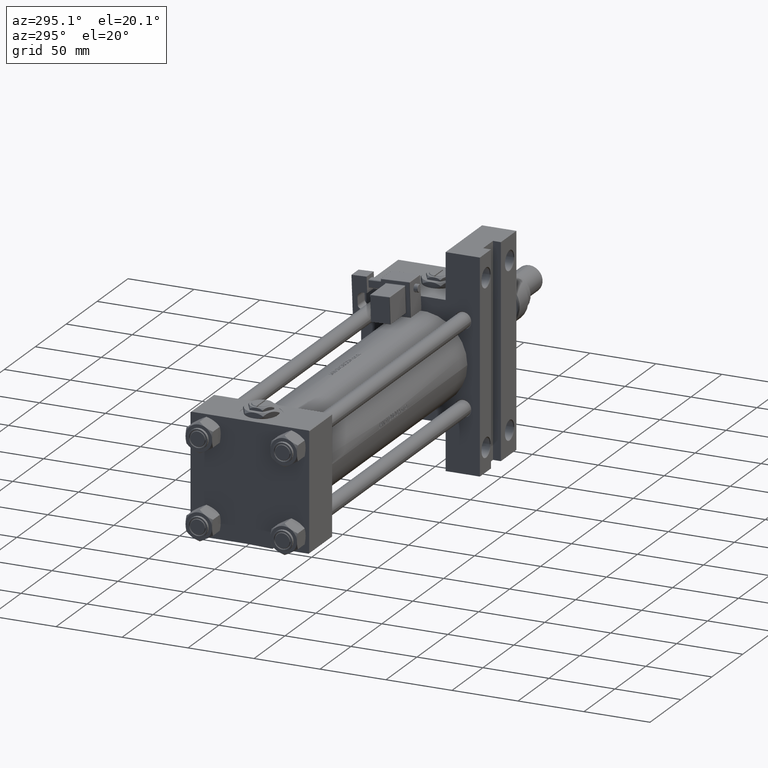
[diagram: clean part render]
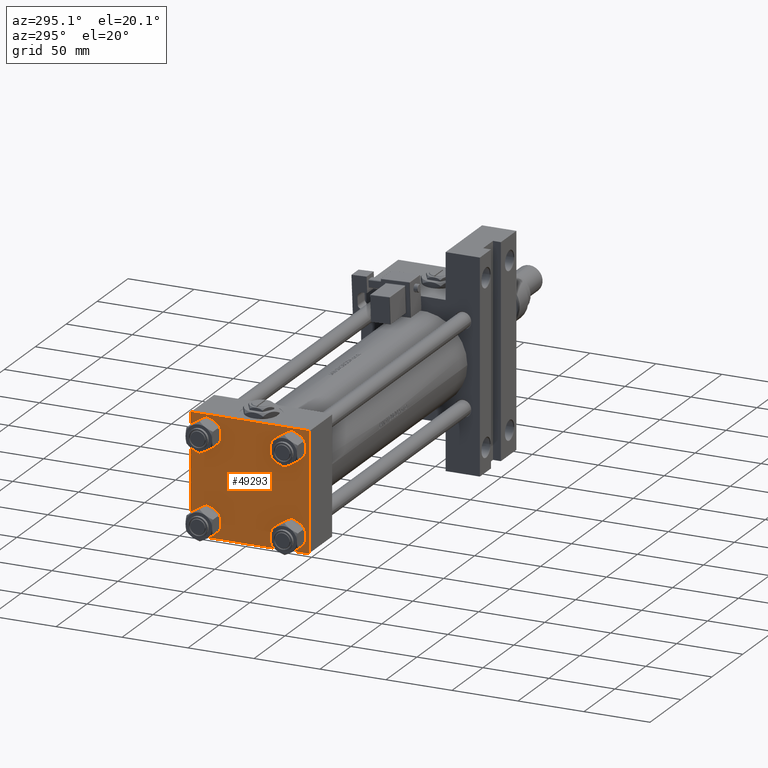
[diagram: same view with one face highlighted and labeled with its STEP entity id]
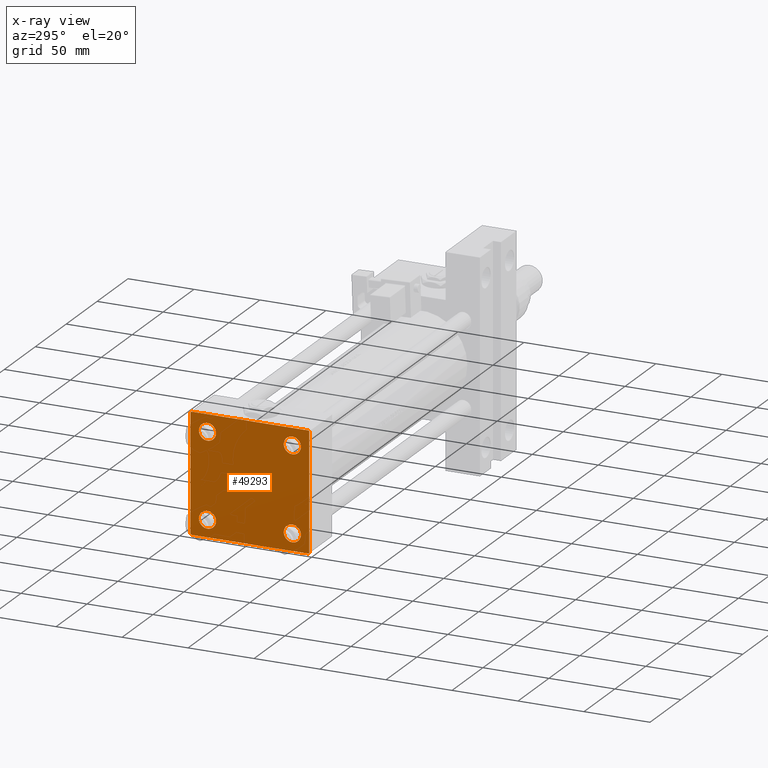
[diagram: x-ray of the same camera — body ghosted, the highlighted face saturated]
A machine part, auxiliary view. The second image highlights one B-rep face of the part: STEP entity #49293.
The next image is the same camera in x-ray: the body ghosted, the highlighted face saturated — about 0% of this face is hidden behind the body in this view.
In plain terms, the highlighted planar face has unit normal (-1, 0, -0).
Its self-contained STEP definition (entity closure, byte-faithful):
#42 = DIRECTION ( 'NONE',  ( 0.000000000000000000, 0.000000000000000000, 1.000000000000000000 ) ) ;
#1494 = CARTESIAN_POINT ( 'NONE',  ( 0.000000000000000000, 44.49999999999998579, -44.99999999999998579 ) ) ;
#1983 = VERTEX_POINT ( 'NONE', #25219 ) ;
#2011 = FACE_BOUND ( 'NONE', #27200, .T. ) ;
#2280 = PLANE ( 'NONE',  #24573 ) ;
#2441 = ORIENTED_EDGE ( 'NONE', *, *, #6268, .T. ) ;
#2838 = LINE ( 'NONE', #19785, #46674 ) ;
#3242 = LINE ( 'NONE', #23225, #47771 ) ;
#3815 = ORIENTED_EDGE ( 'NONE', *, *, #5638, .F. ) ;
#4173 = EDGE_CURVE ( 'NONE', #36672, #33599, #33583, .T. ) ;
#4318 = VERTEX_POINT ( 'NONE', #14980 ) ;
#4747 = CARTESIAN_POINT ( 'NONE',  ( 0.000000000000000000, -32.14999999999997726, 32.15000000000001279 ) ) ;
#4759 = CARTESIAN_POINT ( 'NONE',  ( 0.000000000000000000, 44.99999999999998579, -44.99999999999998579 ) ) ;
#4943 = DIRECTION ( 'NONE',  ( 0.000000000000000000, 0.000000000000000000, 1.000000000000000000 ) ) ;
#5510 = ORIENTED_EDGE ( 'NONE', *, *, #30969, .T. ) ;
#5638 = EDGE_CURVE ( 'NONE', #16341, #1983, #51134, .T. ) ;
#6042 = CARTESIAN_POINT ( 'NONE',  ( 0.000000000000000000, -32.14999999999997726, 38.65000000000003411 ) ) ;
#6268 = EDGE_CURVE ( 'NONE', #14085, #47386, #46030, .T. ) ;
#6413 = ORIENTED_EDGE ( 'NONE', *, *, #30420, .T. ) ;
#7318 = EDGE_CURVE ( 'NONE', #33599, #1983, #9243, .T. ) ;
#7683 = CIRCLE ( 'NONE', #43046, 6.499999999999977796 ) ;
#7918 = VERTEX_POINT ( 'NONE', #53179 ) ;
#7980 = DIRECTION ( 'NONE',  ( 0.000000000000000000, 7.709882115452476934E-17, -1.000000000000000000 ) ) ;
#8175 = CARTESIAN_POINT ( 'NONE',  ( 0.000000000000000000, -32.14999999999997726, -25.65000000000003411 ) ) ;
#8426 = DIRECTION ( 'NONE',  ( 0.000000000000000000, 0.000000000000000000, 1.000000000000000000 ) ) ;
#9243 = LINE ( 'NONE', #13681, #27505 ) ;
#9439 = CIRCLE ( 'NONE', #43901, 6.499999999999977796 ) ;
#9755 = CARTESIAN_POINT ( 'NONE',  ( 0.000000000000000000, 44.99999999999998579, -44.49999999999995737 ) ) ;
#10045 = FACE_OUTER_BOUND ( 'NONE', #46944, .T. ) ;
#10575 = CIRCLE ( 'NONE', #40681, 6.499999999999977796 ) ;
#10576 = CARTESIAN_POINT ( 'NONE',  ( -0.000000000000000000, -44.75000000000029843, 44.74999999999967315 ) ) ;
#10913 = CARTESIAN_POINT ( 'NONE',  ( 0.000000000000000000, 44.99999999999998579, 44.50000000000001421 ) ) ;
#11052 = LINE ( 'NONE', #48157, #22729 ) ;
#11530 = AXIS2_PLACEMENT_3D ( 'NONE', #17107, #34507, #51386 ) ;
#13266 = VECTOR ( 'NONE', #7980, 1000.000000000000000 ) ;
#13681 = CARTESIAN_POINT ( 'NONE',  ( 0.000000000000000000, -44.74999999999998579, -44.74999999999998579 ) ) ;
#14085 = VERTEX_POINT ( 'NONE', #50502 ) ;
#14232 = FACE_BOUND ( 'NONE', #31986, .T. ) ;
#14238 = AXIS2_PLACEMENT_3D ( 'NONE', #24527, #53568, #8426 ) ;
#14352 = ORIENTED_EDGE ( 'NONE', *, *, #24219, .T. ) ;
#14980 = CARTESIAN_POINT ( 'NONE',  ( 0.000000000000000000, 44.49999999999998579, 45.00000000000001421 ) ) ;
#15713 = CARTESIAN_POINT ( 'NONE',  ( 0.000000000000000000, -44.49999999999995737, 45.00000000000000000 ) ) ;
#16023 = DIRECTION ( 'NONE',  ( 1.000000000000000000, -0.000000000000000000, 0.000000000000000000 ) ) ;
#16341 = VERTEX_POINT ( 'NONE', #45507 ) ;
#16822 = ORIENTED_EDGE ( 'NONE', *, *, #21292, .T. ) ;
#16825 = DIRECTION ( 'NONE',  ( 0.000000000000000000, 0.000000000000000000, 1.000000000000000000 ) ) ;
#17107 = CARTESIAN_POINT ( 'NONE',  ( 0.000000000000000000, 32.14999999999999147, 32.15000000000000568 ) ) ;
#17282 = DIRECTION ( 'NONE',  ( 1.000000000000000000, -0.000000000000000000, 0.000000000000000000 ) ) ;
#17373 = EDGE_LOOP ( 'NONE', ( #14352, #6413 ) ) ;
#17405 = ORIENTED_EDGE ( 'NONE', *, *, #18112, .T. ) ;
#17714 = DIRECTION ( 'NONE',  ( 1.000000000000000000, -0.000000000000000000, 0.000000000000000000 ) ) ;
#17879 = CIRCLE ( 'NONE', #53028, 6.499999999999977796 ) ;
#18112 = EDGE_CURVE ( 'NONE', #29729, #28612, #45007, .T. ) ;
#18238 = VERTEX_POINT ( 'NONE', #39973 ) ;
#18951 = FACE_BOUND ( 'NONE', #17373, .T. ) ;
#19364 = ORIENTED_EDGE ( 'NONE', *, *, #21005, .T. ) ;
#19785 = CARTESIAN_POINT ( 'NONE',  ( 0.000000000000000000, 44.74999999999999289, 44.74999999999999289 ) ) ;
#21005 = EDGE_CURVE ( 'NONE', #49049, #44223, #9439, .T. ) ;
#21292 = EDGE_CURVE ( 'NONE', #44223, #49049, #7683, .T. ) ;
#22729 = VECTOR ( 'NONE', #27697, 1000.000000000000000 ) ;
#23225 = CARTESIAN_POINT ( 'NONE',  ( 0.000000000000000000, 44.74999999999998579, -44.74999999999998579 ) ) ;
#23631 = EDGE_CURVE ( 'NONE', #4318, #29729, #2838, .T. ) ;
#24219 = EDGE_CURVE ( 'NONE', #18238, #42245, #32593, .T. ) ;
#24527 = CARTESIAN_POINT ( 'NONE',  ( 0.000000000000000000, -32.14999999999997726, 32.15000000000001279 ) ) ;
#24573 = AXIS2_PLACEMENT_3D ( 'NONE', #31114, #35811, #52673 ) ;
#24865 = CARTESIAN_POINT ( 'NONE',  ( 0.000000000000000000, 32.14999999999999147, 32.15000000000000568 ) ) ;
#25219 = CARTESIAN_POINT ( 'NONE',  ( 0.000000000000000000, -45.00000000000000000, -44.49999999999995737 ) ) ;
#25922 = ORIENTED_EDGE ( 'NONE', *, *, #7318, .T. ) ;
#26130 = DIRECTION ( 'NONE',  ( 0.000000000000000000, 0.000000000000000000, 1.000000000000000000 ) ) ;
#26651 = ORIENTED_EDGE ( 'NONE', *, *, #32605, .T. ) ;
#27200 = EDGE_LOOP ( 'NONE', ( #19364, #16822 ) ) ;
#27505 = VECTOR ( 'NONE', #38081, 1000.000000000000114 ) ;
#27697 = DIRECTION ( 'NONE',  ( 0.000000000000000000, -1.000000000000000000, -1.541976423090495387E-16 ) ) ;
#28343 = DIRECTION ( 'NONE',  ( 0.000000000000000000, 0.7071067811865474617, -0.7071067811865474617 ) ) ;
#28607 = AXIS2_PLACEMENT_3D ( 'NONE', #4747, #33834, #42 ) ;
#28612 = VERTEX_POINT ( 'NONE', #9755 ) ;
#28687 = CARTESIAN_POINT ( 'NONE',  ( 0.000000000000000000, 44.99999999999998579, 45.00000000000001421 ) ) ;
#29729 = VERTEX_POINT ( 'NONE', #10913 ) ;
#30092 = VECTOR ( 'NONE', #39957, 1000.000000000000114 ) ;
#30420 = EDGE_CURVE ( 'NONE', #42245, #18238, #10575, .T. ) ;
#30541 = EDGE_CURVE ( 'NONE', #47386, #14085, #17879, .T. ) ;
#30969 = EDGE_CURVE ( 'NONE', #16341, #47831, #43547, .T. ) ;
#31114 = CARTESIAN_POINT ( 'NONE',  ( 0.000000000000000000, 0.000000000000000000, 0.000000000000000000 ) ) ;
#31513 = EDGE_CURVE ( 'NONE', #28612, #36672, #3242, .T. ) ;
#31647 = FACE_BOUND ( 'NONE', #36552, .T. ) ;
#31800 = VECTOR ( 'NONE', #45550, 1000.000000000000000 ) ;
#31986 = EDGE_LOOP ( 'NONE', ( #35981, #2441 ) ) ;
#32593 = CIRCLE ( 'NONE', #53805, 6.499999999999977796 ) ;
#32605 = EDGE_CURVE ( 'NONE', #38315, #7918, #41634, .T. ) ;
#33154 = DIRECTION ( 'NONE',  ( 0.000000000000000000, 0.000000000000000000, 1.000000000000000000 ) ) ;
#33434 = CARTESIAN_POINT ( 'NONE',  ( 0.000000000000000000, -32.14999999999997726, -32.15000000000001279 ) ) ;
#33583 = LINE ( 'NONE', #4759, #35243 ) ;
#33599 = VERTEX_POINT ( 'NONE', #51844 ) ;
#33834 = DIRECTION ( 'NONE',  ( 1.000000000000000000, -0.000000000000000000, 0.000000000000000000 ) ) ;
#34507 = DIRECTION ( 'NONE',  ( 1.000000000000000000, -0.000000000000000000, 0.000000000000000000 ) ) ;
#34888 = ORIENTED_EDGE ( 'NONE', *, *, #31513, .T. ) ;
#35243 = VECTOR ( 'NONE', #38011, 1000.000000000000000 ) ;
#35811 = DIRECTION ( 'NONE',  ( -1.000000000000000000, 0.000000000000000000, -0.000000000000000000 ) ) ;
#35981 = ORIENTED_EDGE ( 'NONE', *, *, #30541, .T. ) ;
#36552 = EDGE_LOOP ( 'NONE', ( #26651, #45036 ) ) ;
#36672 = VERTEX_POINT ( 'NONE', #1494 ) ;
#38011 = DIRECTION ( 'NONE',  ( 0.000000000000000000, -1.000000000000000000, -1.541976423090495633E-16 ) ) ;
#38081 = DIRECTION ( 'NONE',  ( 0.000000000000000000, -0.7071067811865474617, 0.7071067811865474617 ) ) ;
#38315 = VERTEX_POINT ( 'NONE', #6042 ) ;
#39957 = DIRECTION ( 'NONE',  ( -0.000000000000000000, 0.7071067811865425767, 0.7071067811865524577 ) ) ;
#39973 = CARTESIAN_POINT ( 'NONE',  ( 0.000000000000000000, 32.14999999999999147, -25.65000000000002700 ) ) ;
#40093 = DIRECTION ( 'NONE',  ( -0.000000000000000000, -0.7071067811865474617, -0.7071067811865474617 ) ) ;
#40588 = EDGE_CURVE ( 'NONE', #7918, #38315, #52421, .T. ) ;
#40681 = AXIS2_PLACEMENT_3D ( 'NONE', #52044, #45331, #16825 ) ;
#40708 = ORIENTED_EDGE ( 'NONE', *, *, #4173, .T. ) ;
#41194 = DIRECTION ( 'NONE',  ( 0.000000000000000000, 0.000000000000000000, 1.000000000000000000 ) ) ;
#41634 = CIRCLE ( 'NONE', #14238, 6.500000000000019540 ) ;
#42245 = VERTEX_POINT ( 'NONE', #48887 ) ;
#42442 = CARTESIAN_POINT ( 'NONE',  ( 0.000000000000000000, -32.14999999999997726, -38.64999999999999147 ) ) ;
#42444 = CARTESIAN_POINT ( 'NONE',  ( 0.000000000000000000, 32.14999999999999147, -32.15000000000000568 ) ) ;
#43046 = AXIS2_PLACEMENT_3D ( 'NONE', #33434, #16023, #41194 ) ;
#43426 = CARTESIAN_POINT ( 'NONE',  ( 0.000000000000000000, -32.14999999999997726, -32.15000000000001279 ) ) ;
#43547 = LINE ( 'NONE', #10576, #30092 ) ;
#43901 = AXIS2_PLACEMENT_3D ( 'NONE', #43426, #17714, #4943 ) ;
#44223 = VERTEX_POINT ( 'NONE', #42442 ) ;
#45007 = LINE ( 'NONE', #28687, #31800 ) ;
#45036 = ORIENTED_EDGE ( 'NONE', *, *, #40588, .T. ) ;
#45331 = DIRECTION ( 'NONE',  ( 1.000000000000000000, -0.000000000000000000, 0.000000000000000000 ) ) ;
#45507 = CARTESIAN_POINT ( 'NONE',  ( 0.000000000000000000, -45.00000000000000711, 44.49999999999997158 ) ) ;
#45550 = DIRECTION ( 'NONE',  ( 0.000000000000000000, 0.000000000000000000, -1.000000000000000000 ) ) ;
#45898 = CARTESIAN_POINT ( 'NONE',  ( 0.000000000000000000, -45.00000000000000711, 45.00000000000000000 ) ) ;
#46030 = CIRCLE ( 'NONE', #11530, 6.499999999999977796 ) ;
#46674 = VECTOR ( 'NONE', #28343, 1000.000000000000114 ) ;
#46944 = EDGE_LOOP ( 'NONE', ( #17405, #34888, #40708, #25922, #3815, #5510, #48327, #53937 ) ) ;
#47386 = VERTEX_POINT ( 'NONE', #53410 ) ;
#47771 = VECTOR ( 'NONE', #40093, 1000.000000000000114 ) ;
#47831 = VERTEX_POINT ( 'NONE', #15713 ) ;
#48157 = CARTESIAN_POINT ( 'NONE',  ( 0.000000000000000000, 44.99999999999998579, 45.00000000000001421 ) ) ;
#48327 = ORIENTED_EDGE ( 'NONE', *, *, #48341, .F. ) ;
#48341 = EDGE_CURVE ( 'NONE', #4318, #47831, #11052, .T. ) ;
#48887 = CARTESIAN_POINT ( 'NONE',  ( 0.000000000000000000, 32.14999999999999147, -38.64999999999998437 ) ) ;
#49049 = VERTEX_POINT ( 'NONE', #8175 ) ;
#49293 = ADVANCED_FACE ( 'NONE', ( #31647, #2011, #18951, #14232, #10045 ), #2280, .T. ) ;
#50502 = CARTESIAN_POINT ( 'NONE',  ( 0.000000000000000000, 32.14999999999999147, 25.65000000000002700 ) ) ;
#51134 = LINE ( 'NONE', #45898, #13266 ) ;
#51386 = DIRECTION ( 'NONE',  ( 0.000000000000000000, 0.000000000000000000, 1.000000000000000000 ) ) ;
#51844 = CARTESIAN_POINT ( 'NONE',  ( 0.000000000000000000, -44.49999999999995737, -45.00000000000000000 ) ) ;
#52044 = CARTESIAN_POINT ( 'NONE',  ( 0.000000000000000000, 32.14999999999999147, -32.15000000000000568 ) ) ;
#52421 = CIRCLE ( 'NONE', #28607, 6.500000000000019540 ) ;
#52673 = DIRECTION ( 'NONE',  ( -0.000000000000000000, 0.000000000000000000, 1.000000000000000000 ) ) ;
#53028 = AXIS2_PLACEMENT_3D ( 'NONE', #24865, #53626, #33154 ) ;
#53179 = CARTESIAN_POINT ( 'NONE',  ( 0.000000000000000000, -32.14999999999997726, 25.64999999999999147 ) ) ;
#53410 = CARTESIAN_POINT ( 'NONE',  ( 0.000000000000000000, 32.14999999999999147, 38.64999999999999147 ) ) ;
#53568 = DIRECTION ( 'NONE',  ( 1.000000000000000000, -0.000000000000000000, 0.000000000000000000 ) ) ;
#53626 = DIRECTION ( 'NONE',  ( 1.000000000000000000, -0.000000000000000000, 0.000000000000000000 ) ) ;
#53805 = AXIS2_PLACEMENT_3D ( 'NONE', #42444, #17282, #26130 ) ;
#53937 = ORIENTED_EDGE ( 'NONE', *, *, #23631, .T. ) ;